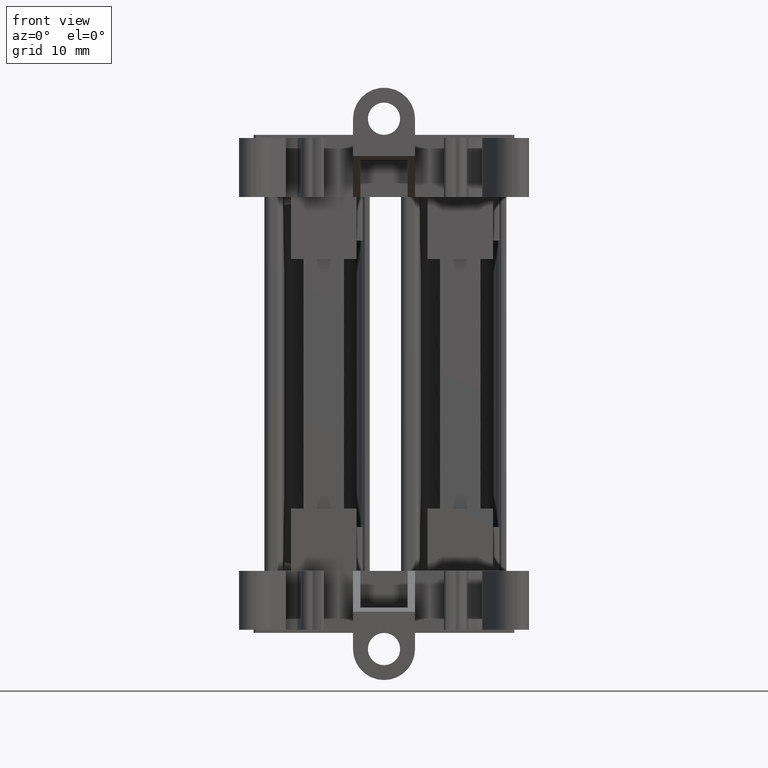
[diagram: clean part render]
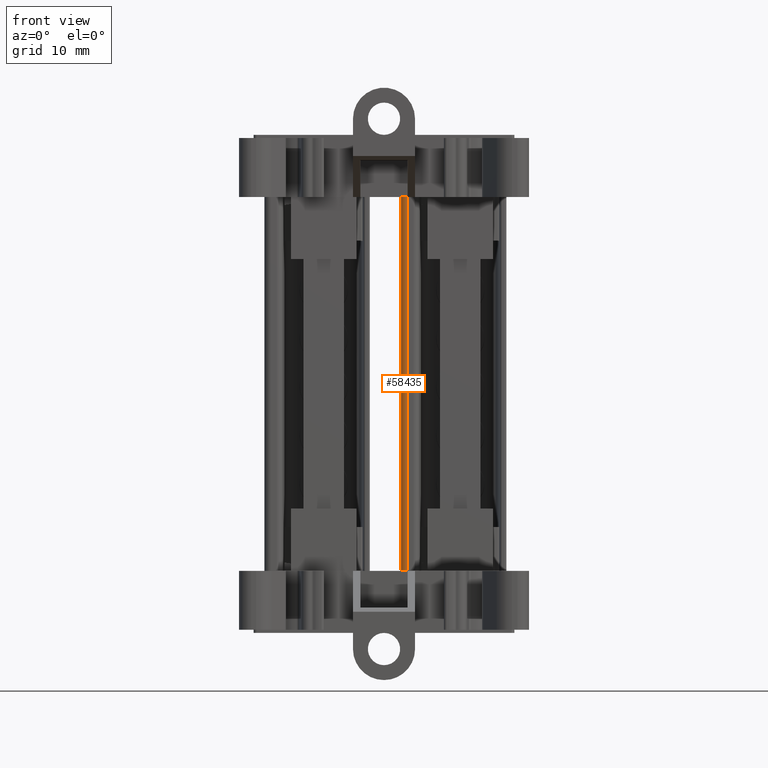
[diagram: same view with one face highlighted and labeled with its STEP entity id]
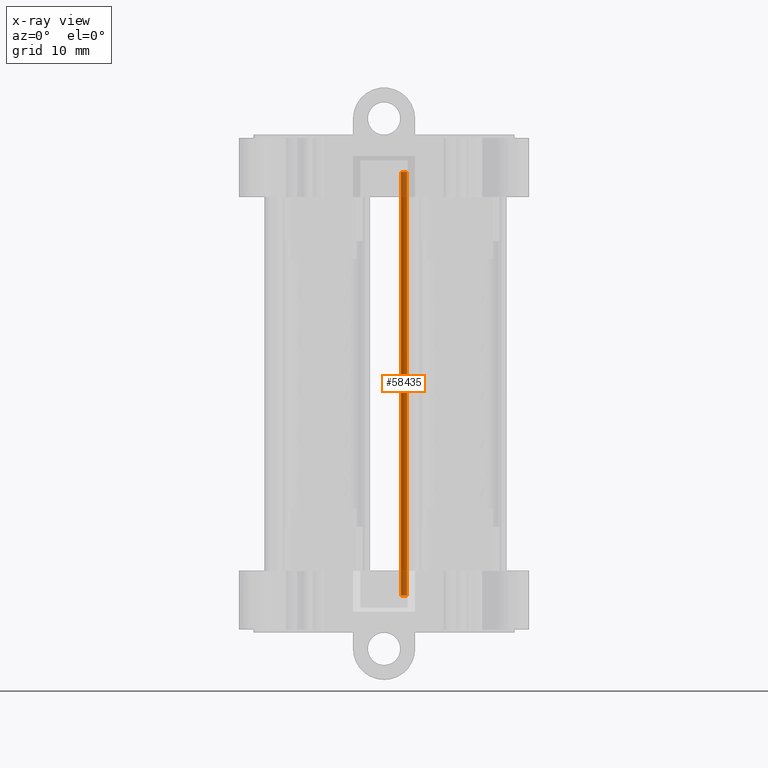
[diagram: x-ray of the same camera — body ghosted, the highlighted face saturated]
A machine part, front view. The second image highlights one B-rep face of the part: STEP entity #58435.
The next image is the same camera in x-ray: the body ghosted, the highlighted face saturated — about 12% of this face is hidden behind the body in this view.
In plain terms, the highlighted cylindrical surface (edge-blend (fillet) strip) has radius 0.9996 mm, axis along (-0, 0, -1).
Its self-contained STEP definition (entity closure, byte-faithful):
#4244 = CARTESIAN_POINT ( 'NONE',  ( -43.09913395647220800, 26.32396892253962400, 69.65133465651399500 ) ) ;
#4247 = DIRECTION ( 'NONE',  ( 0.0000000000000000000, 1.000000000000000000, 1.388304653768317800E-014 ) ) ;
#4271 = CYLINDRICAL_SURFACE ( 'NONE', #11358, 0.9996212121125974700 ) ;
#4273 = DIRECTION ( 'NONE',  ( -6.982962677686110500E-015, 1.604252062634190000E-014, -1.000000000000000000 ) ) ;
#4288 = FACE_OUTER_BOUND ( 'NONE', #42413, .T. ) ;
#7449 = CIRCLE ( 'NONE', #7491, 0.9996212121125974700 ) ;
#7491 = AXIS2_PLACEMENT_3D ( 'NONE', #22619, #22552, #22609 ) ;
#11349 = CARTESIAN_POINT ( 'NONE',  ( -44.09875516858480900, 26.32396892254039500, 69.65133465651401000 ) ) ;
#11358 = AXIS2_PLACEMENT_3D ( 'NONE', #4244, #4273, #4247 ) ;
#11378 = DIRECTION ( 'NONE',  ( -6.982962677686110500E-015, 1.604252062634190000E-014, -1.000000000000000000 ) ) ;
#11388 = LINE ( 'NONE', #11349, #14117 ) ;
#11435 = DIRECTION ( 'NONE',  ( -3.229646657839724900E-028, -1.604252062634175800E-014, 1.000000000000000000 ) ) ;
#11444 = CARTESIAN_POINT ( 'NONE',  ( -43.09913395647292600, 25.32434771042720100, -37.10821079711177400 ) ) ;
#11459 = LINE ( 'NONE', #11444, #14184 ) ;
#14117 = VECTOR ( 'NONE', #11378, 1000.000000000000000 ) ;
#14184 = VECTOR ( 'NONE', #11435, 1000.000000000000000 ) ;
#22012 = DIRECTION ( 'NONE',  ( 6.982962677686110500E-015, -1.604252062634190000E-014, 1.000000000000000000 ) ) ;
#22045 = DIRECTION ( 'NONE',  ( 0.0000000000000000000, 1.000000000000000000, 1.388304653768317800E-014 ) ) ;
#22055 = CARTESIAN_POINT ( 'NONE',  ( -43.09913395647294700, 26.32396892254132200, -36.09779384098947500 ) ) ;
#22552 = DIRECTION ( 'NONE',  ( -6.982962677686110500E-015, 1.604252062634190000E-014, -1.000000000000000000 ) ) ;
#22609 = DIRECTION ( 'NONE',  ( 0.0000000000000000000, 1.000000000000000000, 1.388304653768317800E-014 ) ) ;
#22619 = CARTESIAN_POINT ( 'NONE',  ( -43.09913395647247800, 26.32396892254022800, 31.97218928989246900 ) ) ;
#31734 = CARTESIAN_POINT ( 'NONE',  ( -44.09875516858539900, 26.32396892254173400, -36.09779384098944600 ) ) ;
#31840 = CARTESIAN_POINT ( 'NONE',  ( -43.09913395647292600, 25.32434771042768800, -36.09779384098945300 ) ) ;
#33100 = CARTESIAN_POINT ( 'NONE',  ( -43.09913395647281900, 25.32434771042639800, 31.97218928989245500 ) ) ;
#33114 = CARTESIAN_POINT ( 'NONE',  ( -44.09875516858497900, 26.32396892254099900, 31.97218928989246900 ) ) ;
#42413 = EDGE_LOOP ( 'NONE', ( #55357, #55352, #54672, #55335 ) ) ;
#50297 = VERTEX_POINT ( 'NONE', #33114 ) ;
#50307 = VERTEX_POINT ( 'NONE', #33100 ) ;
#50459 = VERTEX_POINT ( 'NONE', #31734 ) ;
#50497 = VERTEX_POINT ( 'NONE', #31840 ) ;
#53408 = EDGE_CURVE ( 'NONE', #50307, #50297, #7449, .T. ) ;
#53665 = EDGE_CURVE ( 'NONE', #50459, #50497, #59437, .T. ) ;
#54672 = ORIENTED_EDGE ( 'NONE', *, *, #53408, .T. ) ;
#55335 = ORIENTED_EDGE ( 'NONE', *, *, #57218, .T. ) ;
#55352 = ORIENTED_EDGE ( 'NONE', *, *, #57226, .T. ) ;
#55357 = ORIENTED_EDGE ( 'NONE', *, *, #53665, .T. ) ;
#57218 = EDGE_CURVE ( 'NONE', #50297, #50459, #11388, .T. ) ;
#57226 = EDGE_CURVE ( 'NONE', #50497, #50307, #11459, .T. ) ;
#58435 = ADVANCED_FACE ( 'NONE', ( #4288 ), #4271, .T. ) ;
#59437 = CIRCLE ( 'NONE', #59469, 0.9996212121125974700 ) ;
#59469 = AXIS2_PLACEMENT_3D ( 'NONE', #22055, #22012, #22045 ) ;